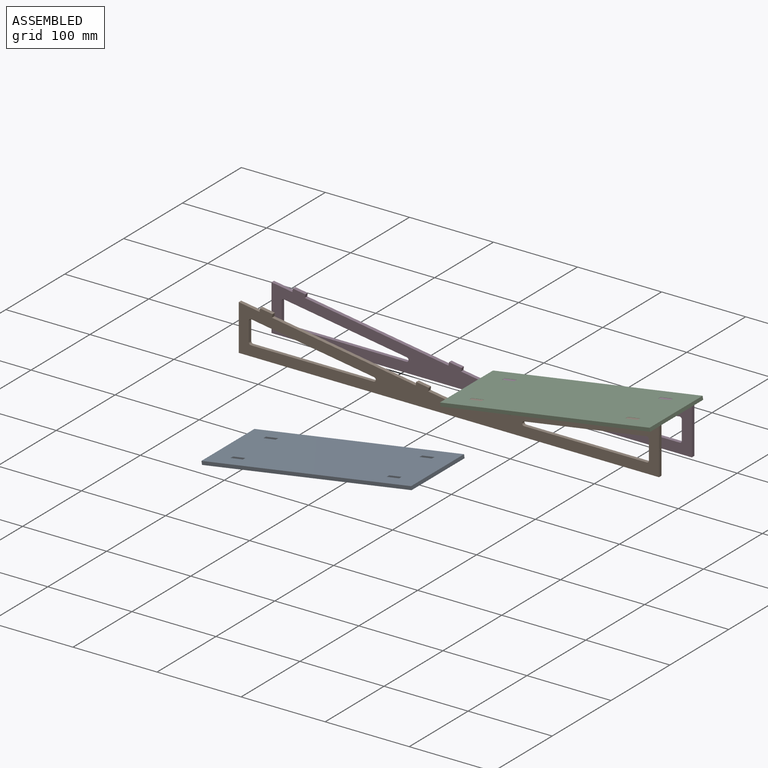
[diagram: assembled view]
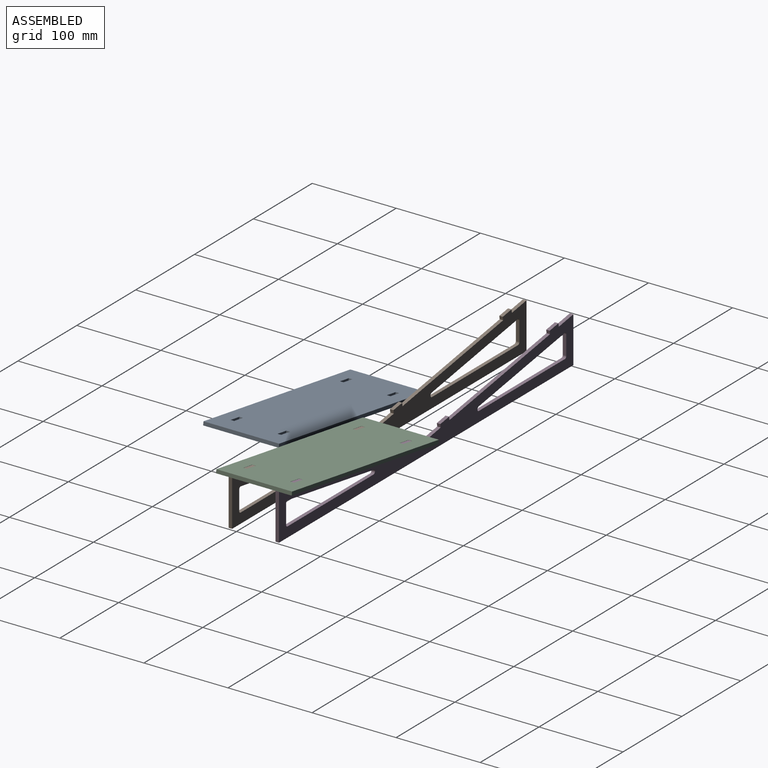
[diagram: assembled view, second angle]
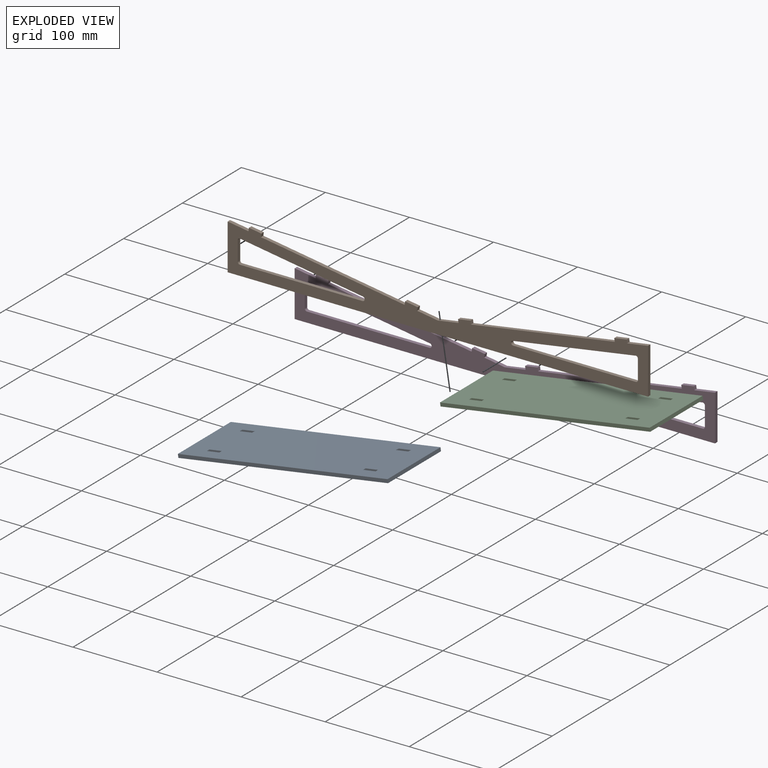
[diagram: exploded view]
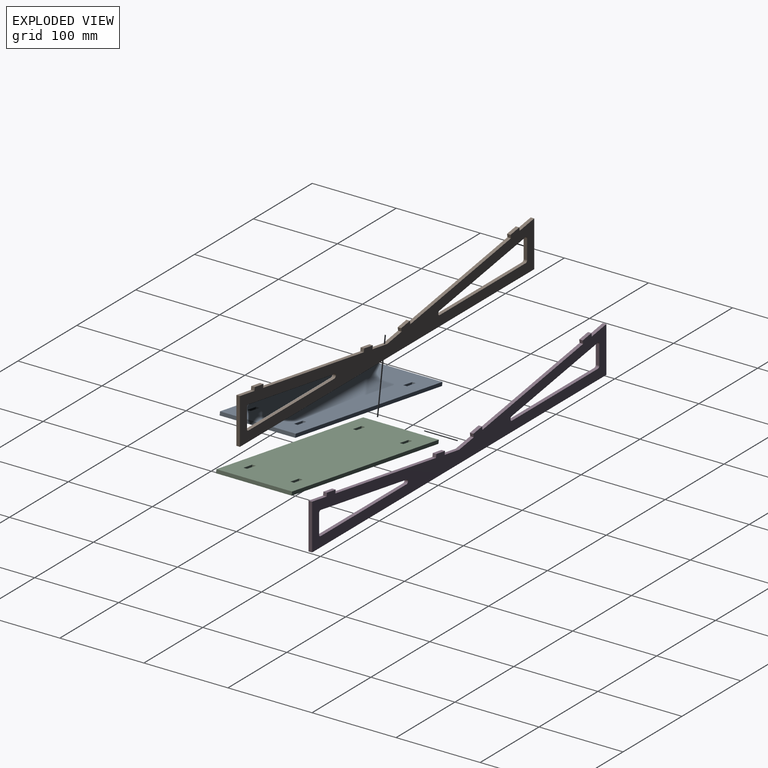
[diagram: exploded view, second angle]
ASSEMBLY  parts=4 mates=6
PART A: 22 faces, bbox 250x90x43.6 mm
  f0: plane 4.2x4.15mm, normal (-0.99,0,-0.16), area 17.6mm2, adj f1,f19,f20,f21
  f1: plane 15.47x6.5mm, normal (0,1,0), area 63mm2, adj f0,f2,f20,f21
  f2: plane 4.2x4.15mm, normal (0.99,0,0.16), area 17.6mm2, adj f1,f19,f20,f21
  f3: plane 15.47x6.5mm, normal (0,-1,0), area 63mm2, adj f4,f15,f20,f21
  f4: plane 4.2x4.15mm, normal (-0.99,0,-0.16), area 17.6mm2, adj f3,f5,f20,f21
  f5: plane 15.47x6.5mm, normal (0,1,0), area 63mm2, adj f4,f15,f20,f21
  f6: plane 90x4.15mm, normal (-0.99,0,-0.16), area 378mm2, adj f7,f16,f20,f21
  f7: plane 250.03x43.65mm, normal (0,-1,0), area 1060.4mm2, adj f6,f8,f20,f21
  f8: plane 90x4.15mm, normal (0.99,0,0.16), area 378mm2, adj f7,f16,f20,f21
  f9: plane 4.2x4.15mm, normal (0.99,0,0.16), area 17.6mm2, adj f10,f17,f20,f21
  f10: plane 15.47x6.5mm, normal (0,-1,0), area 63mm2, adj f9,f11,f20,f21
  f11: plane 4.2x4.15mm, normal (-0.99,0,-0.16), area 17.6mm2, adj f10,f17,f20,f21
  f12: plane 15.47x6.5mm, normal (0,1,0), area 63mm2, adj f13,f18,f20,f21
  f13: plane 4.2x4.15mm, normal (0.99,0,0.16), area 17.6mm2, adj f12,f14,f20,f21
  f14: plane 15.47x6.5mm, normal (0,-1,0), area 63mm2, adj f13,f18,f20,f21
  f15: plane 4.2x4.15mm, normal (0.99,0,0.16), area 17.6mm2, adj f3,f5,f20,f21
  f16: plane 250.03x43.65mm, normal (0,1,0), area 1060.4mm2, adj f6,f8,f20,f21
  f17: plane 15.47x6.5mm, normal (0,1,0), area 63mm2, adj f9,f11,f20,f21
  f18: plane 4.2x4.15mm, normal (-0.99,0,-0.16), area 17.6mm2, adj f12,f14,f20,f21
  f19: plane 15.47x6.5mm, normal (0,-1,0), area 63mm2, adj f0,f2,f20,f21
  f20: plane 249.37x90mm, normal (0.16,0,-0.99), area 22471.4mm2, adj f0,f1,f2,f3,f4,f5,f6,f7
  f21: plane 249.37x90mm, normal (-0.16,0,0.99), area 22471.4mm2, adj f0,f1,f2,f3,f4,f5,f6,f7
PART B: 35 faces, bbox 500x4.2x54.6 mm
  f0: cylinder r=2.5mm len=4.97mm, axis (0,1,0), area 31.3mm2, adj f1,f32,f33,f34
  f1: plane 145.97x4.2mm, normal (0,0,1), area 613.1mm2, adj f0,f2,f33,f34
  f2: cylinder r=2.5mm len=4.2mm, axis (0,1,0), area 16.5mm2, adj f1,f3,f33,f34
  f3: plane 23.12x4.2mm, normal (1,0,0), area 97.1mm2, adj f2,f4,f33,f34
  f4: cylinder r=2.5mm len=4.2mm, axis (0,1,0), area 18.1mm2, adj f3,f32,f33,f34
  f5: plane 4.2x3.95mm, normal (0.99,0,0.16), area 16.8mm2, adj f6,f30,f33,f34
  f6: plane 14.82x4.2mm, normal (-0.16,0,0.99), area 63mm2, adj f5,f7,f33,f34
  f7: plane 4.2x3.95mm, normal (-0.99,0,-0.16), area 16.8mm2, adj f6,f8,f33,f34
  f8: plane 24.69x4.2mm, normal (-0.16,0,0.99), area 105mm2, adj f7,f9,f33,f34
  f9: plane 24.69x4.2mm, normal (0.16,0,0.99), area 105mm2, adj f8,f10,f33,f34
  f10: plane 4.2x3.95mm, normal (0.99,0,-0.16), area 16.8mm2, adj f9,f11,f33,f34
  f11: plane 14.82x4.2mm, normal (0.16,0,0.99), area 63mm2, adj f10,f12,f33,f34
  f12: plane 4.2x3.95mm, normal (-0.99,0,0.16), area 16.8mm2, adj f11,f13,f33,f34
  f13: plane 170.99x27.08mm, normal (0.16,0,0.99), area 727.1mm2, adj f12,f14,f33,f34
  f14: plane 4.2x3.95mm, normal (0.99,0,-0.16), area 16.8mm2, adj f13,f15,f33,f34
  f15: plane 14.82x4.2mm, normal (0.16,0,0.99), area 63mm2, adj f14,f16,f33,f34
  f16: plane 4.2x3.95mm, normal (-0.99,0,0.16), area 16.8mm2, adj f15,f17,f33,f34
  f17: plane 24.69x4.2mm, normal (0.16,0,0.99), area 105mm2, adj f16,f18,f33,f34
  f18: plane 54.6x4.2mm, normal (-1,0,0), area 229.3mm2, adj f17,f19,f33,f34
  f19: plane 500x4.2mm, normal (0,0,-1), area 2100mm2, adj f18,f20,f33,f34
  f20: plane 54.6x4.2mm, normal (1,0,0), area 229.3mm2, adj f19,f21,f33,f34
  f21: plane 24.69x4.2mm, normal (-0.16,0,0.99), area 105mm2, adj f20,f22,f33,f34
  f22: plane 4.2x3.95mm, normal (0.99,0,0.16), area 16.8mm2, adj f21,f23,f33,f34
  f23: plane 14.82x4.2mm, normal (-0.16,0,0.99), area 63mm2, adj f22,f24,f33,f34
  f24: plane 4.2x3.95mm, normal (-0.99,0,-0.16), area 16.8mm2, adj f23,f30,f33,f34
  f25: plane 23.12x4.2mm, normal (-1,0,0), area 97.1mm2, adj f26,f31,f33,f34
  f26: cylinder r=2.5mm len=4.2mm, axis (0,1,0), area 16.5mm2, adj f25,f27,f33,f34
  f27: plane 145.97x4.2mm, normal (0,0,1), area 613.1mm2, adj f26,f28,f33,f34
  f28: cylinder r=2.5mm len=4.97mm, axis (0,1,0), area 31.3mm2, adj f27,f29,f33,f34
  f29: plane 145.97x23.12mm, normal (0.16,0,-0.99), area 620.7mm2, adj f28,f31,f33,f34
  f30: plane 170.99x27.08mm, normal (-0.16,0,0.99), area 727.1mm2, adj f5,f24,f33,f34
  f31: cylinder r=2.5mm len=4.2mm, axis (0,1,0), area 18.1mm2, adj f25,f29,f33,f34
  f32: plane 145.97x23.12mm, normal (-0.16,0,-0.99), area 620.7mm2, adj f0,f4,f33,f34
  f33: plane 500x54.64mm, normal (0,-1,0), area 12640.8mm2, adj f0,f1,f2,f3,f4,f5,f6,f7
  f34: plane 500x54.64mm, normal (0,1,0), area 12640.8mm2, adj f0,f1,f2,f3,f4,f5,f6,f7
PART C: same geometry as A
PART D: same geometry as B
PLACE A t=(-183.26,-143.63,-56.75)mm
PLACE B at identity fixed
PLACE C t=(-0.03,0,0.2)mm
PLACE D t=(0,55.8,0)mm
MATE planar C.f5 <-> D.f33  axis (0,1,0) through (217.24,51.6,53.66)mm
MATE planar B.f30 <-> C.f20  axis (-0.16,0,0.99) through (125,-2.1,34.8)mm
MATE planar B.f33 <-> C.f1  axis (0,-1,0) through (217.27,-4.2,53.46)mm
MATE planar D.f30 <-> C.f20  axis (-0.16,0,0.99) through (125,53.7,34.8)mm
MATE planar C.f15 <-> D.f24  axis (0.99,0,0.16) through (209.84,53.7,52.49)mm
MATE planar B.f7 <-> C.f9  axis (-0.99,0,-0.16) through (24.07,-2.1,22.86)mm
